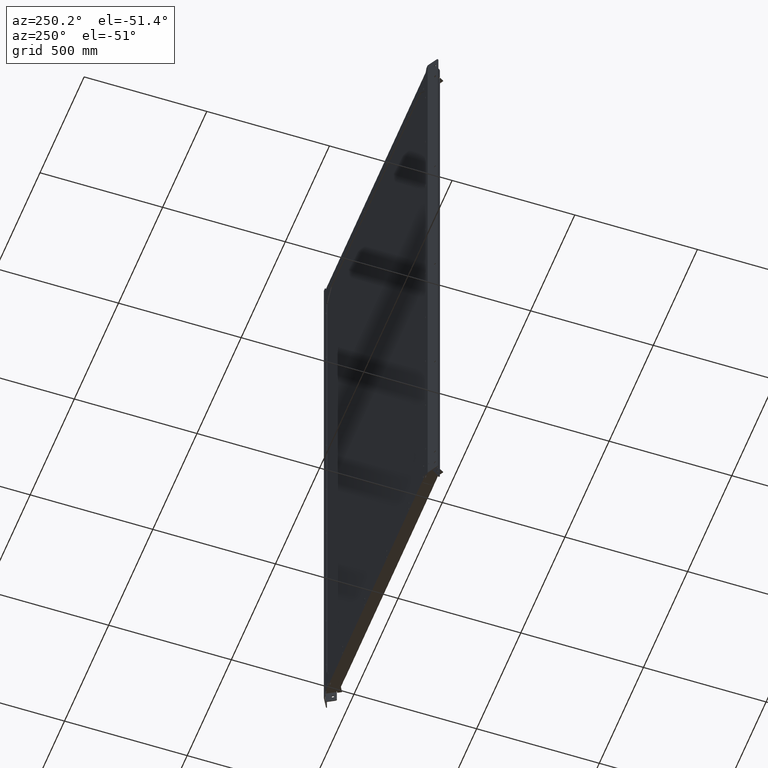
[diagram: clean part render]
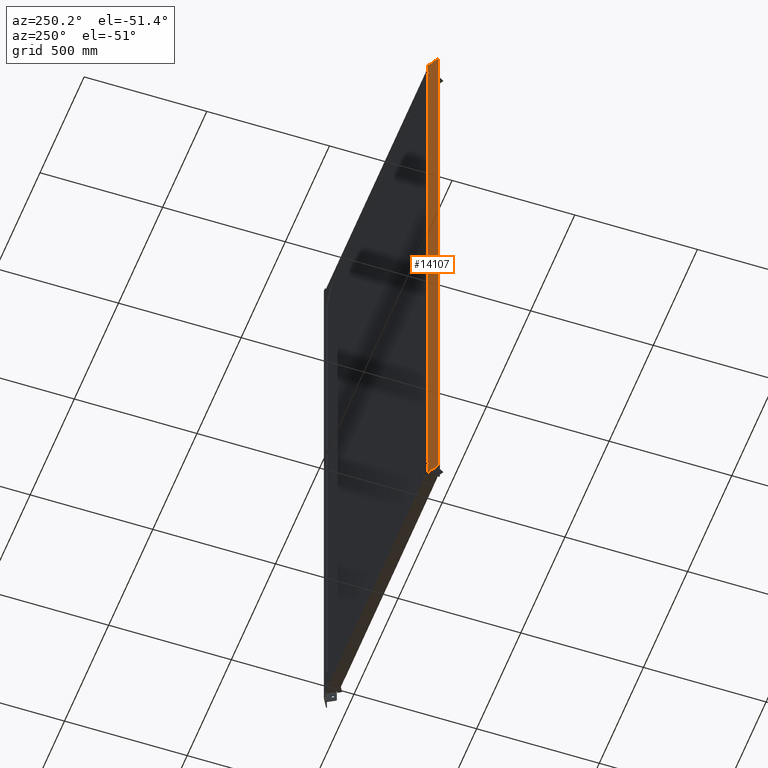
[diagram: same view with one face highlighted and labeled with its STEP entity id]
A machine part, auxiliary view. The second image highlights one B-rep face of the part: STEP entity #14107.
In plain terms, the highlighted planar face has unit normal (0.5, -0.866, 0).
Its self-contained STEP definition (entity closure, byte-faithful):
#28 = DIRECTION ( 'NONE',  ( 0.8660254039598910270, 0.4999999996961076998, 0.000000000000000000 ) ) ;
#111 = EDGE_LOOP ( 'NONE', ( #12905, #2955 ) ) ;
#150 = VECTOR ( 'NONE', #3369, 1000.000000000000000 ) ;
#152 = DIRECTION ( 'NONE',  ( -0.000000000000000000, -0.000000000000000000, 1.000000000000000000 ) ) ;
#231 = CARTESIAN_POINT ( 'NONE',  ( -619.4999999981297378, 1073.005475287774971, 1153.999999999999545 ) ) ;
#232 = VERTEX_POINT ( 'NONE', #6076 ) ;
#249 = CARTESIAN_POINT ( 'NONE',  ( -623.3971139403387269, 1070.755475506000948, -599.9999999999998863 ) ) ;
#251 = CARTESIAN_POINT ( 'NONE',  ( -619.4999999981297378, 1073.005475287774971, -1153.999999999999545 ) ) ;
#372 = DIRECTION ( 'NONE',  ( -0.4999999996961145832, 0.8660254039598869191, 0.000000000000000000 ) ) ;
#446 = CARTESIAN_POINT ( 'NONE',  ( -628.1602536621246600, 1068.005475507668507, -1251.499999999999773 ) ) ;
#451 = VERTEX_POINT ( 'NONE', #2053 ) ;
#460 = VERTEX_POINT ( 'NONE', #8698 ) ;
#482 = ORIENTED_EDGE ( 'NONE', *, *, #8086, .T. ) ;
#486 = CARTESIAN_POINT ( 'NONE',  ( -624.0033320987213301, 1070.405475289355081, 1153.999999999999545 ) ) ;
#658 = EDGE_CURVE ( 'NONE', #8488, #11711, #12628, .T. ) ;
#665 = EDGE_CURVE ( 'NONE', #451, #2454, #3972, .T. ) ;
#738 = ORIENTED_EDGE ( 'NONE', *, *, #2566, .F. ) ;
#878 = ORIENTED_EDGE ( 'NONE', *, *, #8940, .F. ) ;
#953 = VERTEX_POINT ( 'NONE', #1028 ) ;
#983 = VECTOR ( 'NONE', #9236, 999.9999999999998863 ) ;
#993 = CIRCLE ( 'NONE', #11737, 4.499999999996002309 ) ;
#1015 = ORIENTED_EDGE ( 'NONE', *, *, #4048, .F. ) ;
#1028 = CARTESIAN_POINT ( 'NONE',  ( -597.0699416733334601, 1085.955475489040509, -1200.900000000000091 ) ) ;
#1037 = ORIENTED_EDGE ( 'NONE', *, *, #3188, .F. ) ;
#1054 = ORIENTED_EDGE ( 'NONE', *, *, #13060, .F. ) ;
#1095 = CARTESIAN_POINT ( 'NONE',  ( -606.5962211168924796, 1080.455475492383130, -1246.399999999999636 ) ) ;
#1097 = EDGE_CURVE ( 'NONE', #232, #4876, #993, .T. ) ;
#1105 = ORIENTED_EDGE ( 'NONE', *, *, #658, .F. ) ;
#1178 = CIRCLE ( 'NONE', #2083, 5.200000000000212452 ) ;
#1199 = DIRECTION ( 'NONE',  ( -0.4999999996961145832, 0.8660254039598869191, 0.000000000000000000 ) ) ;
#1262 = VECTOR ( 'NONE', #10348, 1000.000000000000000 ) ;
#1271 = VECTOR ( 'NONE', #3251, 999.9999999999998863 ) ;
#1321 = VECTOR ( 'NONE', #1807, 999.9999999999998863 ) ;
#1329 = VERTEX_POINT ( 'NONE', #9725 ) ;
#1358 = ORIENTED_EDGE ( 'NONE', *, *, #12759, .T. ) ;
#1483 = CARTESIAN_POINT ( 'NONE',  ( -606.5962211168924796, 1080.455475492383130, -1251.499999999999773 ) ) ;
#1491 = VECTOR ( 'NONE', #11465, 999.9999999999998863 ) ;
#1555 = VERTEX_POINT ( 'NONE', #9082 ) ;
#1616 = CARTESIAN_POINT ( 'NONE',  ( -603.8249398242207917, 1082.055475491410789, -1251.499999999999773 ) ) ;
#1657 = DIRECTION ( 'NONE',  ( -0.000000000000000000, -0.000000000000000000, 1.000000000000000000 ) ) ;
#1695 = ORIENTED_EDGE ( 'NONE', *, *, #3695, .F. ) ;
#1749 = AXIS2_PLACEMENT_3D ( 'NONE', #231, #372, #2442 ) ;
#1769 = CIRCLE ( 'NONE', #11120, 5.200000000000212452 ) ;
#1796 = VERTEX_POINT ( 'NONE', #8290 ) ;
#1807 = DIRECTION ( 'NONE',  ( -0.8660254039598870301, -0.4999999996961146387, 0.000000000000000000 ) ) ;
#1839 = CARTESIAN_POINT ( 'NONE',  ( -587.8038360356678140, 1091.305264068951146, -1251.499999999999773 ) ) ;
#1902 = CARTESIAN_POINT ( 'NONE',  ( -597.0699416733334601, 1085.955475489040509, -1204.099999999999909 ) ) ;
#1904 = DIRECTION ( 'NONE',  ( -0.8660254039598910270, -0.4999999996961076998, 0.000000000000000000 ) ) ;
#1939 = VERTEX_POINT ( 'NONE', #10710 ) ;
#1991 = CIRCLE ( 'NONE', #8603, 5.200000000000212452 ) ;
#2053 = CARTESIAN_POINT ( 'NONE',  ( -589.1961408803859968, 1090.501416492710405, -1251.499999999999773 ) ) ;
#2062 = CIRCLE ( 'NONE', #2074, 5.200000000000212452 ) ;
#2067 = LINE ( 'NONE', #6226, #1321 ) ;
#2074 = AXIS2_PLACEMENT_3D ( 'NONE', #13312, #10015, #2517 ) ;
#2083 = AXIS2_PLACEMENT_3D ( 'NONE', #5484, #4414, #6553 ) ;
#2118 = CIRCLE ( 'NONE', #12404, 4.499999999996002309 ) ;
#2127 = EDGE_CURVE ( 'NONE', #6113, #3676, #4847, .T. ) ;
#2191 = ORIENTED_EDGE ( 'NONE', *, *, #11755, .F. ) ;
#2201 = EDGE_CURVE ( 'NONE', #10164, #11247, #7133, .T. ) ;
#2333 = CARTESIAN_POINT ( 'NONE',  ( -589.1961408803859968, 1090.501416492710405, -1251.499999999999773 ) ) ;
#2356 = VECTOR ( 'NONE', #3101, 1000.000000000000000 ) ;
#2442 = DIRECTION ( 'NONE',  ( -0.8660254039598910270, -0.4999999996961076998, 0.000000000000000000 ) ) ;
#2453 = ORIENTED_EDGE ( 'NONE', *, *, #6748, .T. ) ;
#2454 = VERTEX_POINT ( 'NONE', #5399 ) ;
#2517 = DIRECTION ( 'NONE',  ( 0.8660254039598910270, 0.4999999996961076998, 0.000000000000000000 ) ) ;
#2566 = EDGE_CURVE ( 'NONE', #451, #8501, #5695, .T. ) ;
#2603 = AXIS2_PLACEMENT_3D ( 'NONE', #7643, #11801, #5287 ) ;
#2647 = CARTESIAN_POINT ( 'NONE',  ( -615.6028853046996119, 1075.255475503266098, 599.9999999999998863 ) ) ;
#2752 = CARTESIAN_POINT ( 'NONE',  ( -587.8038360356678140, 1091.305264068951146, 1200.900000000000091 ) ) ;
#2764 = EDGE_LOOP ( 'NONE', ( #2191, #5159 ) ) ;
#2781 = CARTESIAN_POINT ( 'NONE',  ( -619.4999996225189989, 1073.005475504633750, 599.9999999999998863 ) ) ;
#2783 = EDGE_CURVE ( 'NONE', #1939, #11595, #6109, .T. ) ;
#2853 = DIRECTION ( 'NONE',  ( 0.8660254039598861420, 0.4999999996961158599, 0.000000000000000000 ) ) ;
#2864 = CARTESIAN_POINT ( 'NONE',  ( -589.1961408803859968, 1090.501416492710405, 1251.499999999999773 ) ) ;
#2948 = VERTEX_POINT ( 'NONE', #6654 ) ;
#2955 = ORIENTED_EDGE ( 'NONE', *, *, #3551, .T. ) ;
#3012 = ORIENTED_EDGE ( 'NONE', *, *, #2127, .T. ) ;
#3056 = AXIS2_PLACEMENT_3D ( 'NONE', #251, #13337, #28 ) ;
#3092 = CARTESIAN_POINT ( 'NONE',  ( -623.3971139403387269, 1070.755475506000948, 5.510910596158187771E-16 ) ) ;
#3097 = FACE_BOUND ( 'NONE', #111, .T. ) ;
#3101 = DIRECTION ( 'NONE',  ( 0.000000000000000000, 0.000000000000000000, -1.000000000000000000 ) ) ;
#3156 = AXIS2_PLACEMENT_3D ( 'NONE', #12107, #8950, #6807 ) ;
#3181 = ORIENTED_EDGE ( 'NONE', *, *, #11645, .F. ) ;
#3188 = EDGE_CURVE ( 'NONE', #3381, #8691, #1178, .T. ) ;
#3193 = VERTEX_POINT ( 'NONE', #13214 ) ;
#3205 = DIRECTION ( 'NONE',  ( 0.8660254039598872522, 0.4999999996961139725, 0.000000000000000000 ) ) ;
#3251 = DIRECTION ( 'NONE',  ( 0.8660254039598870301, 0.4999999996961146387, -0.000000000000000000 ) ) ;
#3266 = CARTESIAN_POINT ( 'NONE',  ( -614.9966678975381456, 1075.605475286194860, 1153.999999999999545 ) ) ;
#3283 = AXIS2_PLACEMENT_3D ( 'NONE', #11129, #1199, #7981 ) ;
#3366 = CIRCLE ( 'NONE', #12943, 4.499999999999982236 ) ;
#3369 = DIRECTION ( 'NONE',  ( 0.000000000000000000, 0.000000000000000000, -1.000000000000000000 ) ) ;
#3381 = VERTEX_POINT ( 'NONE', #486 ) ;
#3471 = CIRCLE ( 'NONE', #4373, 4.499999999996002309 ) ;
#3500 = LINE ( 'NONE', #14088, #5891 ) ;
#3522 = VERTEX_POINT ( 'NONE', #5593 ) ;
#3524 = CIRCLE ( 'NONE', #3056, 5.200000000000212452 ) ;
#3528 = DIRECTION ( 'NONE',  ( -0.4999999996961145832, 0.8660254039598869191, 0.000000000000000000 ) ) ;
#3544 = ORIENTED_EDGE ( 'NONE', *, *, #11048, .F. ) ;
#3551 = EDGE_CURVE ( 'NONE', #1796, #5250, #2062, .T. ) ;
#3570 = CIRCLE ( 'NONE', #11089, 5.200000000000212452 ) ;
#3577 = AXIS2_PLACEMENT_3D ( 'NONE', #8009, #6796, #11302 ) ;
#3675 = CARTESIAN_POINT ( 'NONE',  ( -619.4999999981296241, 1073.005475287774971, -1220.000000000000000 ) ) ;
#3676 = VERTEX_POINT ( 'NONE', #446 ) ;
#3680 = CARTESIAN_POINT ( 'NONE',  ( -592.5666095727420952, 1088.555475487460399, -1251.499999999999773 ) ) ;
#3695 = EDGE_CURVE ( 'NONE', #6113, #14051, #6084, .T. ) ;
#3697 = CARTESIAN_POINT ( 'NONE',  ( -606.5962211168924796, 1080.455475492383130, -1251.499999999999773 ) ) ;
#3733 = VECTOR ( 'NONE', #13965, 999.9999999999998863 ) ;
#3810 = EDGE_CURVE ( 'NONE', #6101, #4554, #3471, .T. ) ;
#3876 = EDGE_CURVE ( 'NONE', #4554, #6101, #2118, .T. ) ;
#3915 = DIRECTION ( 'NONE',  ( 0.8660254039598870301, 0.4999999996961146387, -0.000000000000000000 ) ) ;
#3972 = LINE ( 'NONE', #12898, #3733 ) ;
#4020 = CARTESIAN_POINT ( 'NONE',  ( -606.5962211168924796, 1080.455475492383130, -1251.499999999999773 ) ) ;
#4048 = EDGE_CURVE ( 'NONE', #9094, #953, #8122, .T. ) ;
#4054 = EDGE_LOOP ( 'NONE', ( #11194, #12019 ) ) ;
#4079 = EDGE_CURVE ( 'NONE', #7343, #9336, #9193, .T. ) ;
#4128 = CARTESIAN_POINT ( 'NONE',  ( -606.5962211168924796, 1080.455475492383130, 1251.499999999999773 ) ) ;
#4234 = FACE_BOUND ( 'NONE', #11322, .T. ) ;
#4240 = DIRECTION ( 'NONE',  ( -0.8660254039598870301, -0.4999999996961146387, 0.000000000000000000 ) ) ;
#4373 = AXIS2_PLACEMENT_3D ( 'NONE', #6217, #6288, #3205 ) ;
#4414 = DIRECTION ( 'NONE',  ( -0.4999999996961145832, 0.8660254039598869191, 0.000000000000000000 ) ) ;
#4427 = DIRECTION ( 'NONE',  ( 0.000000000000000000, 0.000000000000000000, -1.000000000000000000 ) ) ;
#4554 = VERTEX_POINT ( 'NONE', #249 ) ;
#4752 = EDGE_CURVE ( 'NONE', #5369, #7216, #3570, .T. ) ;
#4847 = LINE ( 'NONE', #1839, #13821 ) ;
#4876 = VERTEX_POINT ( 'NONE', #3092 ) ;
#4913 = CARTESIAN_POINT ( 'NONE',  ( -597.0699416733334601, 1085.955475489040509, -1251.499999999999773 ) ) ;
#4974 = DIRECTION ( 'NONE',  ( 0.8660254039598872522, 0.4999999996961139725, 0.000000000000000000 ) ) ;
#5048 = CARTESIAN_POINT ( 'NONE',  ( -615.6028853047066605, 1075.255475503262005, -599.9999999999998863 ) ) ;
#5055 = VECTOR ( 'NONE', #1657, 1000.000000000000000 ) ;
#5157 = CARTESIAN_POINT ( 'NONE',  ( -587.8038360356678140, 1091.305264068951146, -1200.900000000000091 ) ) ;
#5159 = ORIENTED_EDGE ( 'NONE', *, *, #12494, .F. ) ;
#5202 = DIRECTION ( 'NONE',  ( -0.000000000000000000, -0.000000000000000000, 1.000000000000000000 ) ) ;
#5232 = LINE ( 'NONE', #10867, #150 ) ;
#5250 = VERTEX_POINT ( 'NONE', #13815 ) ;
#5287 = DIRECTION ( 'NONE',  ( -0.8660254039598919151, -0.4999999996961058679, 0.000000000000000000 ) ) ;
#5305 = FACE_BOUND ( 'NONE', #9663, .T. ) ;
#5369 = VERTEX_POINT ( 'NONE', #9849 ) ;
#5399 = CARTESIAN_POINT ( 'NONE',  ( -603.8249398242207917, 1082.055475491410789, -1251.499999999999773 ) ) ;
#5484 = CARTESIAN_POINT ( 'NONE',  ( -619.4999999981297378, 1073.005475287774971, 1153.999999999999545 ) ) ;
#5539 = VERTEX_POINT ( 'NONE', #5714 ) ;
#5593 = CARTESIAN_POINT ( 'NONE',  ( -632.4903806819240799, 1065.505475509188045, -1246.500000000000000 ) ) ;
#5607 = CARTESIAN_POINT ( 'NONE',  ( -587.8038360356678140, 1091.305264068951146, -1204.099999999999909 ) ) ;
#5628 = CIRCLE ( 'NONE', #1749, 5.200000000000212452 ) ;
#5695 = LINE ( 'NONE', #2333, #6400 ) ;
#5714 = CARTESIAN_POINT ( 'NONE',  ( -614.9966678975380319, 1075.605475286194860, -1220.000000000000000 ) ) ;
#5742 = EDGE_LOOP ( 'NONE', ( #1015, #3544, #1105, #7015 ) ) ;
#5819 = EDGE_CURVE ( 'NONE', #3522, #460, #7547, .T. ) ;
#5891 = VECTOR ( 'NONE', #9854, 999.9999999999998863 ) ;
#5909 = DIRECTION ( 'NONE',  ( -0.000000000000000000, -0.000000000000000000, 1.000000000000000000 ) ) ;
#5915 = ORIENTED_EDGE ( 'NONE', *, *, #10353, .F. ) ;
#5927 = DIRECTION ( 'NONE',  ( 0.8660254039598910270, 0.4999999996961076998, 0.000000000000000000 ) ) ;
#6072 = CARTESIAN_POINT ( 'NONE',  ( -587.8038360356678140, 1091.305264068951146, 1251.499999999999773 ) ) ;
#6076 = CARTESIAN_POINT ( 'NONE',  ( -615.6028853047066605, 1075.255475503262005, 0.000000000000000000 ) ) ;
#6084 = LINE ( 'NONE', #4020, #5055 ) ;
#6101 = VERTEX_POINT ( 'NONE', #5048 ) ;
#6109 = LINE ( 'NONE', #1616, #7326 ) ;
#6113 = VERTEX_POINT ( 'NONE', #3697 ) ;
#6217 = CARTESIAN_POINT ( 'NONE',  ( -619.4999996225226369, 1073.005475504631477, -599.9999999999998863 ) ) ;
#6226 = CARTESIAN_POINT ( 'NONE',  ( -587.8038360356678140, 1091.305264068951146, 1251.499999999999773 ) ) ;
#6235 = VECTOR ( 'NONE', #4427, 1000.000000000000000 ) ;
#6288 = DIRECTION ( 'NONE',  ( -0.4999999996961145832, 0.8660254039598869191, 0.000000000000000000 ) ) ;
#6294 = ORIENTED_EDGE ( 'NONE', *, *, #3876, .F. ) ;
#6338 = CARTESIAN_POINT ( 'NONE',  ( -624.0033320987212164, 1070.405475289355081, 1220.000000000000000 ) ) ;
#6372 = FACE_BOUND ( 'NONE', #6786, .T. ) ;
#6400 = VECTOR ( 'NONE', #13482, 1000.000000000000000 ) ;
#6531 = CIRCLE ( 'NONE', #3577, 4.499999999999982236 ) ;
#6553 = DIRECTION ( 'NONE',  ( -0.8660254039598910270, -0.4999999996961076998, 0.000000000000000000 ) ) ;
#6589 = EDGE_CURVE ( 'NONE', #953, #8488, #10446, .T. ) ;
#6654 = CARTESIAN_POINT ( 'NONE',  ( -592.5666095727420952, 1088.555475487460399, 1200.900000000000091 ) ) ;
#6664 = FACE_OUTER_BOUND ( 'NONE', #13724, .T. ) ;
#6708 = VECTOR ( 'NONE', #3915, 999.9999999999998863 ) ;
#6748 = EDGE_CURVE ( 'NONE', #460, #3193, #8978, .T. ) ;
#6754 = ORIENTED_EDGE ( 'NONE', *, *, #4752, .F. ) ;
#6786 = EDGE_LOOP ( 'NONE', ( #6754, #5915 ) ) ;
#6796 = DIRECTION ( 'NONE',  ( -0.4999999996961145832, 0.8660254039598869191, 0.000000000000000000 ) ) ;
#6807 = DIRECTION ( 'NONE',  ( -0.8660254039598870301, -0.4999999996961146387, 0.000000000000000000 ) ) ;
#6966 = CIRCLE ( 'NONE', #10606, 5.200000000000212452 ) ;
#7015 = ORIENTED_EDGE ( 'NONE', *, *, #6589, .F. ) ;
#7025 = CARTESIAN_POINT ( 'NONE',  ( -597.0699416733334601, 1085.955475489040509, 1200.900000000000091 ) ) ;
#7106 = ORIENTED_EDGE ( 'NONE', *, *, #8454, .F. ) ;
#7133 = LINE ( 'NONE', #11424, #1262 ) ;
#7136 = DIRECTION ( 'NONE',  ( -0.4999999996961145832, 0.8660254039598869191, 0.000000000000000000 ) ) ;
#7202 = CARTESIAN_POINT ( 'NONE',  ( -587.8038360356678140, 1091.305264068951146, -1246.399999999999636 ) ) ;
#7216 = VERTEX_POINT ( 'NONE', #6338 ) ;
#7241 = ORIENTED_EDGE ( 'NONE', *, *, #10533, .T. ) ;
#7255 = DIRECTION ( 'NONE',  ( -0.4999999996961145832, 0.8660254039598869191, 0.000000000000000000 ) ) ;
#7312 = VERTEX_POINT ( 'NONE', #11917 ) ;
#7326 = VECTOR ( 'NONE', #8256, 1000.000000000000000 ) ;
#7343 = VERTEX_POINT ( 'NONE', #4128 ) ;
#7391 = EDGE_CURVE ( 'NONE', #3676, #3522, #9451, .T. ) ;
#7474 = DIRECTION ( 'NONE',  ( -0.4999999996961145832, 0.8660254039598869191, 0.000000000000000000 ) ) ;
#7547 = LINE ( 'NONE', #13986, #11473 ) ;
#7610 = CARTESIAN_POINT ( 'NONE',  ( -587.8038360356678140, 1091.305264068951146, 1246.399999999999636 ) ) ;
#7643 = CARTESIAN_POINT ( 'NONE',  ( -628.1602536621245463, 1068.005475507668507, 1246.500000000000000 ) ) ;
#7669 = AXIS2_PLACEMENT_3D ( 'NONE', #10672, #7255, #4974 ) ;
#7829 = ORIENTED_EDGE ( 'NONE', *, *, #12482, .T. ) ;
#7830 = VECTOR ( 'NONE', #5909, 1000.000000000000000 ) ;
#7879 = EDGE_CURVE ( 'NONE', #5250, #1796, #3524, .T. ) ;
#7981 = DIRECTION ( 'NONE',  ( -0.8660254039598919151, -0.4999999996961058679, 0.000000000000000000 ) ) ;
#8009 = CARTESIAN_POINT ( 'NONE',  ( -619.4999996225189989, 1073.005475504633750, 599.9999999999998863 ) ) ;
#8028 = DIRECTION ( 'NONE',  ( 0.4999999996961145832, -0.8660254039598869191, -0.000000000000000000 ) ) ;
#8086 = EDGE_CURVE ( 'NONE', #11247, #2948, #12556, .T. ) ;
#8108 = EDGE_CURVE ( 'NONE', #2948, #10149, #9109, .T. ) ;
#8122 = LINE ( 'NONE', #4913, #7830 ) ;
#8167 = ORIENTED_EDGE ( 'NONE', *, *, #13325, .T. ) ;
#8210 = CARTESIAN_POINT ( 'NONE',  ( -619.4999999981296241, 1073.005475287774971, -1220.000000000000000 ) ) ;
#8256 = DIRECTION ( 'NONE',  ( -0.000000000000000000, -0.000000000000000000, 1.000000000000000000 ) ) ;
#8281 = ORIENTED_EDGE ( 'NONE', *, *, #5819, .T. ) ;
#8290 = CARTESIAN_POINT ( 'NONE',  ( -624.0033320987213301, 1070.405475289355081, -1153.999999999999545 ) ) ;
#8454 = EDGE_CURVE ( 'NONE', #7343, #3193, #11715, .T. ) ;
#8488 = VERTEX_POINT ( 'NONE', #9502 ) ;
#8501 = VERTEX_POINT ( 'NONE', #2864 ) ;
#8526 = CARTESIAN_POINT ( 'NONE',  ( -592.5666095727420952, 1088.555475487460399, -1251.499999999999773 ) ) ;
#8574 = CIRCLE ( 'NONE', #7669, 4.499999999996002309 ) ;
#8603 = AXIS2_PLACEMENT_3D ( 'NONE', #8210, #10211, #5927 ) ;
#8691 = VERTEX_POINT ( 'NONE', #3266 ) ;
#8698 = CARTESIAN_POINT ( 'NONE',  ( -632.4903806819240799, 1065.505475509188045, 1246.500000000000000 ) ) ;
#8895 = CARTESIAN_POINT ( 'NONE',  ( -606.5962211168924796, 1080.455475492383130, 1246.399999999999636 ) ) ;
#8940 = EDGE_CURVE ( 'NONE', #14051, #1555, #10342, .T. ) ;
#8950 = DIRECTION ( 'NONE',  ( 0.4999999996961146387, -0.8660254039598870301, -0.000000000000000000 ) ) ;
#8978 = CIRCLE ( 'NONE', #2603, 4.999999999999932498 ) ;
#9082 = CARTESIAN_POINT ( 'NONE',  ( -603.8249398242207917, 1082.055475491410789, -1246.399999999999636 ) ) ;
#9094 = VERTEX_POINT ( 'NONE', #1902 ) ;
#9109 = LINE ( 'NONE', #3680, #9475 ) ;
#9193 = LINE ( 'NONE', #1483, #6235 ) ;
#9236 = DIRECTION ( 'NONE',  ( 0.8660254039598870301, 0.4999999996961146387, -0.000000000000000000 ) ) ;
#9280 = DIRECTION ( 'NONE',  ( -0.8660254039598870301, -0.4999999996961146387, 0.000000000000000000 ) ) ;
#9336 = VERTEX_POINT ( 'NONE', #8895 ) ;
#9341 = ORIENTED_EDGE ( 'NONE', *, *, #7391, .T. ) ;
#9426 = DIRECTION ( 'NONE',  ( -0.8660254039598870301, -0.4999999996961146387, 0.000000000000000000 ) ) ;
#9451 = CIRCLE ( 'NONE', #3283, 4.999999999999932498 ) ;
#9475 = VECTOR ( 'NONE', #152, 1000.000000000000000 ) ;
#9502 = CARTESIAN_POINT ( 'NONE',  ( -592.5666095727420952, 1088.555475487460399, -1200.899999999999864 ) ) ;
#9663 = EDGE_LOOP ( 'NONE', ( #13155, #6294 ) ) ;
#9664 = FACE_BOUND ( 'NONE', #2764, .T. ) ;
#9725 = CARTESIAN_POINT ( 'NONE',  ( -623.3971139403386132, 1070.755475506001176, 599.9999999999998863 ) ) ;
#9825 = LINE ( 'NONE', #7610, #1271 ) ;
#9849 = CARTESIAN_POINT ( 'NONE',  ( -614.9966678975380319, 1075.605475286194860, 1220.000000000000000 ) ) ;
#9854 = DIRECTION ( 'NONE',  ( -0.8660254039598870301, -0.4999999996961146387, 0.000000000000000000 ) ) ;
#9954 = FACE_BOUND ( 'NONE', #5742, .T. ) ;
#9971 = EDGE_LOOP ( 'NONE', ( #12395, #1037 ) ) ;
#10015 = DIRECTION ( 'NONE',  ( 0.4999999996961145832, -0.8660254039598869191, -0.000000000000000000 ) ) ;
#10149 = VERTEX_POINT ( 'NONE', #12942 ) ;
#10164 = VERTEX_POINT ( 'NONE', #14092 ) ;
#10211 = DIRECTION ( 'NONE',  ( 0.4999999996961145832, -0.8660254039598869191, -0.000000000000000000 ) ) ;
#10342 = LINE ( 'NONE', #7202, #6708 ) ;
#10348 = DIRECTION ( 'NONE',  ( 0.000000000000000000, 0.000000000000000000, -1.000000000000000000 ) ) ;
#10353 = EDGE_CURVE ( 'NONE', #7216, #5369, #6966, .T. ) ;
#10396 = ORIENTED_EDGE ( 'NONE', *, *, #665, .T. ) ;
#10446 = LINE ( 'NONE', #5157, #983 ) ;
#10533 = EDGE_CURVE ( 'NONE', #9336, #1939, #9825, .T. ) ;
#10606 = AXIS2_PLACEMENT_3D ( 'NONE', #12508, #7474, #1904 ) ;
#10631 = ORIENTED_EDGE ( 'NONE', *, *, #2783, .T. ) ;
#10659 = CARTESIAN_POINT ( 'NONE',  ( -603.8249398242207917, 1082.055475491410789, 1251.499999999999773 ) ) ;
#10672 = CARTESIAN_POINT ( 'NONE',  ( -619.4999996225226369, 1073.005475504631477, 0.000000000000000000 ) ) ;
#10710 = CARTESIAN_POINT ( 'NONE',  ( -603.8249398242207917, 1082.055475491410789, 1246.399999999999636 ) ) ;
#10731 = FACE_BOUND ( 'NONE', #9971, .T. ) ;
#10776 = CARTESIAN_POINT ( 'NONE',  ( -619.4999996225226369, 1073.005475504631477, -599.9999999999998863 ) ) ;
#10808 = LINE ( 'NONE', #5607, #12707 ) ;
#10867 = CARTESIAN_POINT ( 'NONE',  ( -603.8249398242207917, 1082.055475491410789, -1251.499999999999773 ) ) ;
#10996 = EDGE_CURVE ( 'NONE', #4876, #232, #8574, .T. ) ;
#11048 = EDGE_CURVE ( 'NONE', #11711, #9094, #10808, .T. ) ;
#11089 = AXIS2_PLACEMENT_3D ( 'NONE', #13833, #11541, #12554 ) ;
#11097 = PLANE ( 'NONE',  #3156 ) ;
#11120 = AXIS2_PLACEMENT_3D ( 'NONE', #3675, #8028, #12403 ) ;
#11129 = CARTESIAN_POINT ( 'NONE',  ( -628.1602536621246600, 1068.005475507668507, -1246.500000000000000 ) ) ;
#11173 = DIRECTION ( 'NONE',  ( 0.8660254039598872522, 0.4999999996961139725, 0.000000000000000000 ) ) ;
#11194 = ORIENTED_EDGE ( 'NONE', *, *, #1097, .F. ) ;
#11247 = VERTEX_POINT ( 'NONE', #7025 ) ;
#11302 = DIRECTION ( 'NONE',  ( 0.8660254039598861420, 0.4999999996961158599, 0.000000000000000000 ) ) ;
#11322 = EDGE_LOOP ( 'NONE', ( #11524, #8167, #12232, #482 ) ) ;
#11424 = CARTESIAN_POINT ( 'NONE',  ( -597.0699416733334601, 1085.955475489040509, -1251.499999999999773 ) ) ;
#11465 = DIRECTION ( 'NONE',  ( 0.8660254039598870301, 0.4999999996961146387, -0.000000000000000000 ) ) ;
#11473 = VECTOR ( 'NONE', #5202, 1000.000000000000000 ) ;
#11524 = ORIENTED_EDGE ( 'NONE', *, *, #8108, .T. ) ;
#11541 = DIRECTION ( 'NONE',  ( -0.4999999996961145832, 0.8660254039598869191, 0.000000000000000000 ) ) ;
#11595 = VERTEX_POINT ( 'NONE', #10659 ) ;
#11645 = EDGE_CURVE ( 'NONE', #1555, #2454, #5232, .T. ) ;
#11711 = VERTEX_POINT ( 'NONE', #13240 ) ;
#11715 = LINE ( 'NONE', #6072, #14005 ) ;
#11737 = AXIS2_PLACEMENT_3D ( 'NONE', #13327, #3528, #11173 ) ;
#11749 = EDGE_CURVE ( 'NONE', #8691, #3381, #5628, .T. ) ;
#11755 = EDGE_CURVE ( 'NONE', #12327, #1329, #6531, .T. ) ;
#11801 = DIRECTION ( 'NONE',  ( -0.4999999996961145832, 0.8660254039598869191, 0.000000000000000000 ) ) ;
#11818 = FACE_BOUND ( 'NONE', #14089, .T. ) ;
#11917 = CARTESIAN_POINT ( 'NONE',  ( -624.0033320987212164, 1070.405475289355081, -1220.000000000000000 ) ) ;
#11932 = DIRECTION ( 'NONE',  ( 0.8660254039598872522, 0.4999999996961139725, 0.000000000000000000 ) ) ;
#11937 = ORIENTED_EDGE ( 'NONE', *, *, #4079, .T. ) ;
#12019 = ORIENTED_EDGE ( 'NONE', *, *, #10996, .F. ) ;
#12107 = CARTESIAN_POINT ( 'NONE',  ( -587.8038360356678140, 1091.305264068951146, -1251.499999999999773 ) ) ;
#12232 = ORIENTED_EDGE ( 'NONE', *, *, #2201, .T. ) ;
#12327 = VERTEX_POINT ( 'NONE', #2647 ) ;
#12395 = ORIENTED_EDGE ( 'NONE', *, *, #11749, .F. ) ;
#12403 = DIRECTION ( 'NONE',  ( 0.8660254039598910270, 0.4999999996961076998, 0.000000000000000000 ) ) ;
#12404 = AXIS2_PLACEMENT_3D ( 'NONE', #10776, #13880, #11932 ) ;
#12482 = EDGE_CURVE ( 'NONE', #7312, #5539, #1991, .T. ) ;
#12494 = EDGE_CURVE ( 'NONE', #1329, #12327, #3366, .T. ) ;
#12508 = CARTESIAN_POINT ( 'NONE',  ( -619.4999999981296241, 1073.005475287774971, 1220.000000000000000 ) ) ;
#12554 = DIRECTION ( 'NONE',  ( -0.8660254039598910270, -0.4999999996961076998, 0.000000000000000000 ) ) ;
#12556 = LINE ( 'NONE', #2752, #1491 ) ;
#12628 = LINE ( 'NONE', #8526, #2356 ) ;
#12707 = VECTOR ( 'NONE', #4240, 999.9999999999998863 ) ;
#12759 = EDGE_CURVE ( 'NONE', #5539, #7312, #1769, .T. ) ;
#12898 = CARTESIAN_POINT ( 'NONE',  ( -587.8038360356678140, 1091.305264068951146, -1251.499999999999773 ) ) ;
#12905 = ORIENTED_EDGE ( 'NONE', *, *, #7879, .T. ) ;
#12942 = CARTESIAN_POINT ( 'NONE',  ( -592.5666095727420952, 1088.555475487460171, 1204.099999999999682 ) ) ;
#12943 = AXIS2_PLACEMENT_3D ( 'NONE', #2781, #7136, #2853 ) ;
#13060 = EDGE_CURVE ( 'NONE', #8501, #11595, #2067, .T. ) ;
#13155 = ORIENTED_EDGE ( 'NONE', *, *, #3810, .F. ) ;
#13214 = CARTESIAN_POINT ( 'NONE',  ( -628.1602536621246600, 1068.005475507668507, 1251.499999999999773 ) ) ;
#13240 = CARTESIAN_POINT ( 'NONE',  ( -592.5666095727420952, 1088.555475487460171, -1204.099999999999909 ) ) ;
#13312 = CARTESIAN_POINT ( 'NONE',  ( -619.4999999981297378, 1073.005475287774971, -1153.999999999999545 ) ) ;
#13325 = EDGE_CURVE ( 'NONE', #10149, #10164, #3500, .T. ) ;
#13327 = CARTESIAN_POINT ( 'NONE',  ( -619.4999996225226369, 1073.005475504631477, 0.000000000000000000 ) ) ;
#13337 = DIRECTION ( 'NONE',  ( 0.4999999996961145832, -0.8660254039598869191, -0.000000000000000000 ) ) ;
#13482 = DIRECTION ( 'NONE',  ( -0.000000000000000000, -0.000000000000000000, 1.000000000000000000 ) ) ;
#13724 = EDGE_LOOP ( 'NONE', ( #10396, #3181, #878, #1695, #3012, #9341, #8281, #2453, #7106, #11937, #7241, #10631, #1054, #738 ) ) ;
#13815 = CARTESIAN_POINT ( 'NONE',  ( -614.9966678975381456, 1075.605475286194860, -1153.999999999999545 ) ) ;
#13821 = VECTOR ( 'NONE', #9280, 999.9999999999998863 ) ;
#13833 = CARTESIAN_POINT ( 'NONE',  ( -619.4999999981296241, 1073.005475287774971, 1220.000000000000000 ) ) ;
#13880 = DIRECTION ( 'NONE',  ( -0.4999999996961145832, 0.8660254039598869191, 0.000000000000000000 ) ) ;
#13965 = DIRECTION ( 'NONE',  ( -0.8660254039598870301, -0.4999999996961146387, 0.000000000000000000 ) ) ;
#13986 = CARTESIAN_POINT ( 'NONE',  ( -632.4903806819240799, 1065.505475509188045, -1251.499999999999773 ) ) ;
#14005 = VECTOR ( 'NONE', #9426, 999.9999999999998863 ) ;
#14037 = FACE_BOUND ( 'NONE', #4054, .T. ) ;
#14051 = VERTEX_POINT ( 'NONE', #1095 ) ;
#14088 = CARTESIAN_POINT ( 'NONE',  ( -587.8038360356678140, 1091.305264068951146, 1204.099999999999682 ) ) ;
#14089 = EDGE_LOOP ( 'NONE', ( #1358, #7829 ) ) ;
#14092 = CARTESIAN_POINT ( 'NONE',  ( -597.0699416733334601, 1085.955475489040509, 1204.099999999999682 ) ) ;
#14107 = ADVANCED_FACE ( 'NONE', ( #3097, #11818, #6372, #10731, #5305, #9664, #14037, #4234, #9954, #6664 ), #11097, .F. ) ;